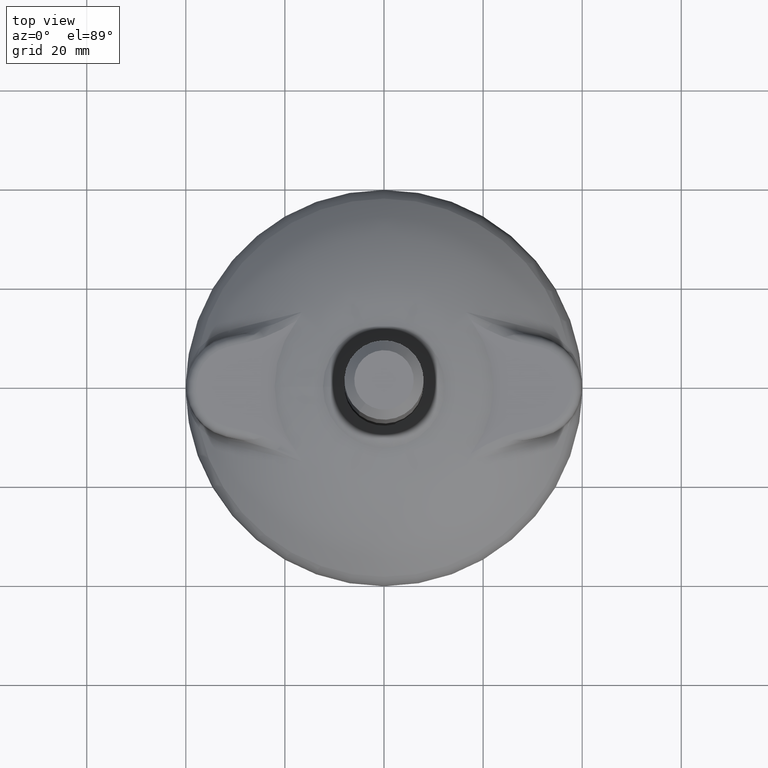
[diagram: clean part render]
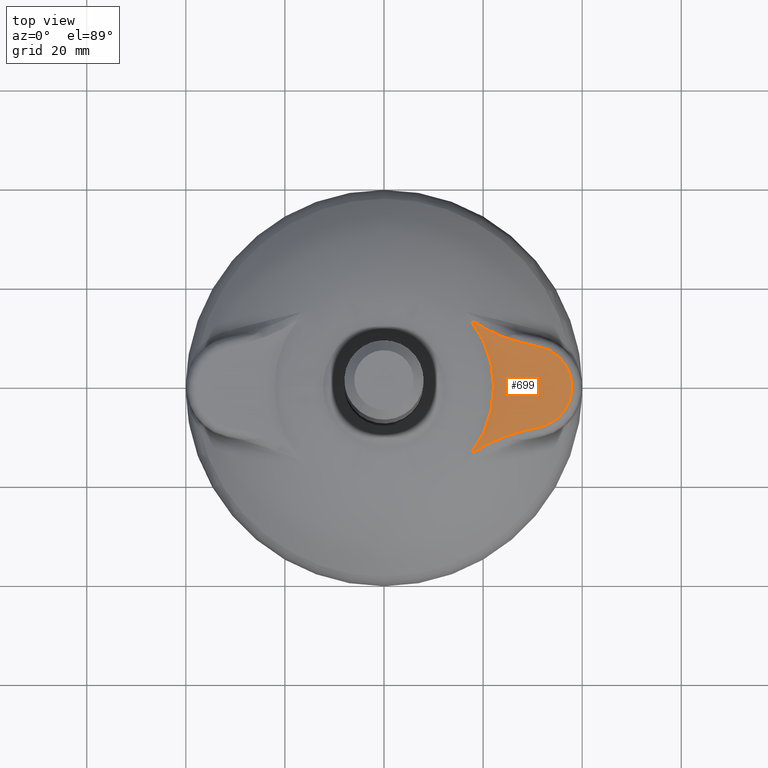
[diagram: same view with one face highlighted and labeled with its STEP entity id]
A machine part, top view. The second image highlights one B-rep face of the part: STEP entity #699.
In plain terms, the highlighted planar face has unit normal (0, 0, -1).
Its self-contained STEP definition (entity closure, byte-faithful):
#36=PLANE('',#761);
#53=LINE('',#1091,#71);
#55=LINE('',#1103,#73);
#71=VECTOR('',#854,3.97258626881059);
#73=VECTOR('',#868,3.97258623823506);
#89=B_SPLINE_CURVE_WITH_KNOTS('',3,(#1073,#1074,#1075,#1076,#1077),
 .UNSPECIFIED.,.F.,.F.,(4,1,4),(0.187723728384692,0.560611349257256,1.30809314826693),
 .UNSPECIFIED.);
#93=B_SPLINE_CURVE_WITH_KNOTS('',3,(#1156,#1157,#1158,#1159,#1160,#1161),
 .UNSPECIFIED.,.F.,.F.,(4,1,1,4),(0.,0.560611349648733,0.934352249414555,
1.12041446328276),.UNSPECIFIED.);
#168=FACE_OUTER_BOUND('',#221,.T.);
#221=EDGE_LOOP('',(#512,#513,#514,#515,#516,#517));
#282=CIRCLE('',#758,8.2709865184655);
#284=CIRCLE('',#762,22.103331811743);
#325=VERTEX_POINT('',#1063);
#326=VERTEX_POINT('',#1072);
#328=VERTEX_POINT('',#1087);
#330=VERTEX_POINT('',#1093);
#332=VERTEX_POINT('',#1099);
#334=VERTEX_POINT('',#1139);
#391=EDGE_CURVE('',#325,#326,#89,.T.);
#396=EDGE_CURVE('',#326,#328,#53,.T.);
#399=EDGE_CURVE('',#328,#330,#282,.T.);
#402=EDGE_CURVE('',#330,#332,#55,.T.);
#405=EDGE_CURVE('',#332,#334,#93,.T.);
#406=EDGE_CURVE('',#334,#325,#284,.T.);
#512=ORIENTED_EDGE('',*,*,#405,.F.);
#513=ORIENTED_EDGE('',*,*,#402,.F.);
#514=ORIENTED_EDGE('',*,*,#399,.F.);
#515=ORIENTED_EDGE('',*,*,#396,.F.);
#516=ORIENTED_EDGE('',*,*,#391,.F.);
#517=ORIENTED_EDGE('',*,*,#406,.F.);
#699=ADVANCED_FACE('',(#168),#36,.F.);
#758=AXIS2_PLACEMENT_3D('',#1097,#861,#862);
#761=AXIS2_PLACEMENT_3D('',#1162,#869,#870);
#762=AXIS2_PLACEMENT_3D('',#1163,#871,#872);
#854=DIRECTION('',(-0.973616310567801,-0.228191322789328,0.));
#861=DIRECTION('center_axis',(0.,0.,1.));
#862=DIRECTION('ref_axis',(-1.,1.09042397371664E-16,0.));
#868=DIRECTION('',(0.973616310567801,-0.228191322789328,0.));
#869=DIRECTION('center_axis',(0.,0.,1.));
#870=DIRECTION('ref_axis',(1.,0.,0.));
#871=DIRECTION('center_axis',(0.,0.,-1.));
#872=DIRECTION('ref_axis',(-1.,0.,0.));
#1063=CARTESIAN_POINT('',(-17.4998852429205,13.502269944888,-14.));
#1072=CARTESIAN_POINT('',(-27.6760727000798,8.96025899144202,-13.9999984424153));
#1073=CARTESIAN_POINT('Ctrl Pts',(-17.4998852314542,13.5022699285318,-13.9999941705495));
#1074=CARTESIAN_POINT('Ctrl Pts',(-18.5187647634004,12.7893287130415,-13.9999904416754));
#1075=CARTESIAN_POINT('Ctrl Pts',(-21.7610093024452,10.9402530734836,-13.9999985410038));
#1076=CARTESIAN_POINT('Ctrl Pts',(-25.2517236711681,9.53244924633803,-13.9999572649825));
#1077=CARTESIAN_POINT('Ctrl Pts',(-27.6771632958941,8.96491220024994,-13.9999910610229));
#1087=CARTESIAN_POINT('',(-31.5436173544214,8.0527673788644,-14.));
#1091=CARTESIAN_POINT('',(-1.4876118001515,15.0971436806464,-14.));
#1093=CARTESIAN_POINT('',(-31.5436173544213,-8.0527673788644,-14.));
#1097=CARTESIAN_POINT('Origin',(-29.65625,-9.74996872036752E-18,-14.));
#1099=CARTESIAN_POINT('',(-27.6758425977385,-8.95927708746194,-14.));
#1103=CARTESIAN_POINT('',(-17.4876118001515,-11.3471436806464,-14.));
#1139=CARTESIAN_POINT('',(-17.4998852429205,-13.502269944888,-14.));
#1156=CARTESIAN_POINT('Ctrl Pts',(-27.6758425769116,-8.95927709234325,-14.));
#1157=CARTESIAN_POINT('Ctrl Pts',(-25.856441397044,-9.385699243082,-14.));
#1158=CARTESIAN_POINT('Ctrl Pts',(-22.9202220408798,-10.4569616553684,-14.));
#1159=CARTESIAN_POINT('Ctrl Pts',(-19.582468788784,-12.1518878467932,-14.));
#1160=CARTESIAN_POINT('Ctrl Pts',(-18.0071655276054,-13.1449765441694,-14.));
#1161=CARTESIAN_POINT('Ctrl Pts',(-17.4986641219371,-13.5005361135911,-14.));
#1162=CARTESIAN_POINT('Origin',(-4.62657816045888E-15,-7.27389775507096E-17,
-14.));
#1163=CARTESIAN_POINT('Origin',(0.,0.,-14.));